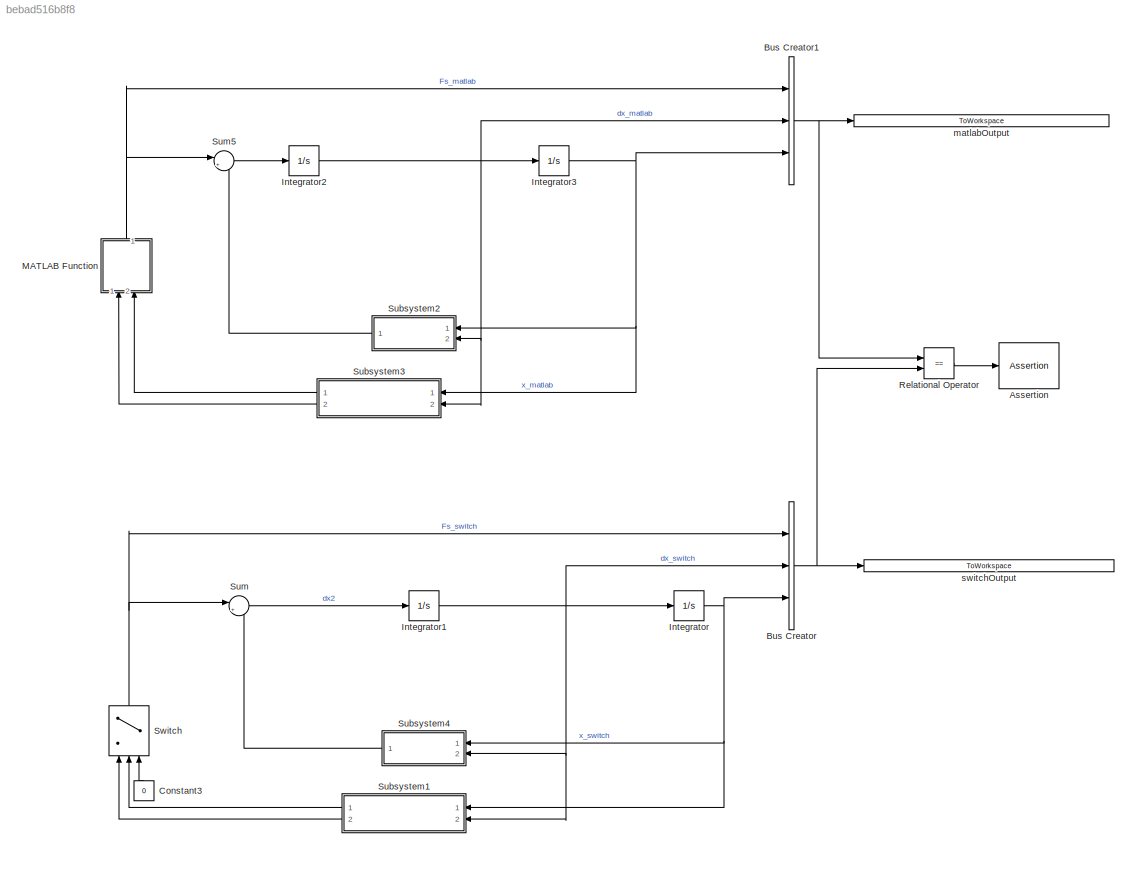
MODEL slx_bebad516b8f8
KIND model
CONFIG StopFcn = save(wSaveFileName,wSwitchOutputName,wMatlabOutputName)
BLOCK [Assertion] Assertion
BLOCK [BusCreator] Bus Creator
  DisplayOption = bar
  Inputs = 3
  Ports = [3, 1]
BLOCK [BusCreator] Bus Creator1
  DisplayOption = bar
  Inputs = 3
  Ports = [3, 1]
BLOCK [Constant] Constant3
  Value = 0
BLOCK [Integrator] Integrator
  InitialCondition = x0
  Ports = [1, 1]
BLOCK [Integrator] Integrator1
  InitialCondition = v0
  Ports = [1, 1]
BLOCK [Integrator] Integrator2
  InitialCondition = v0
  Ports = [1, 1]
BLOCK [Integrator] Integrator3
  InitialCondition = x0
  Ports = [1, 1]
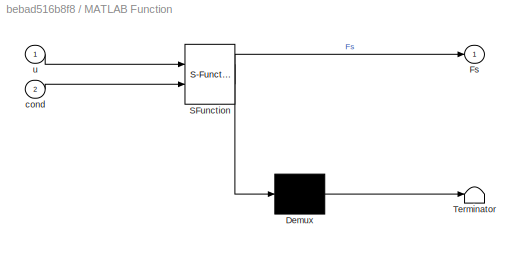
BLOCK [SubSystem] MATLAB Function
  ErrorFcn = Stateflow.Translate.translate
  PermitHierarchicalResolution = ExplicitOnly
  Ports = [2, 1]
  RequestExecContextInheritance = off
  SFBlockType = MATLAB Function
  TreatAsAtomicUnit = on
BLOCK [Demux] MATLAB Function/ Demux 
  Outputs = 1
  Ports = [1, 1]
BLOCK [S-Function] MATLAB Function/ SFunction 
  EnableBusSupport = on
  FunctionName = sf_sfun
  PortCounts = [2 2]
  Ports = [2, 2]
  Tag = Stateflow S-Function masseRessort 2
BLOCK [Terminator] MATLAB Function/ Terminator 
BLOCK [Outport] MATLAB Function/Fs
  IconDisplay = Port number
BLOCK [Inport] MATLAB Function/cond
  IconDisplay = Port number
  Port = 2
BLOCK [Inport] MATLAB Function/u
  IconDisplay = Port number
BLOCK [RelationalOperator] Relational Operator
  InputSameDT = off
  Operator = ==
  OutDataTypeStr = boolean
  Ports = [2, 1]
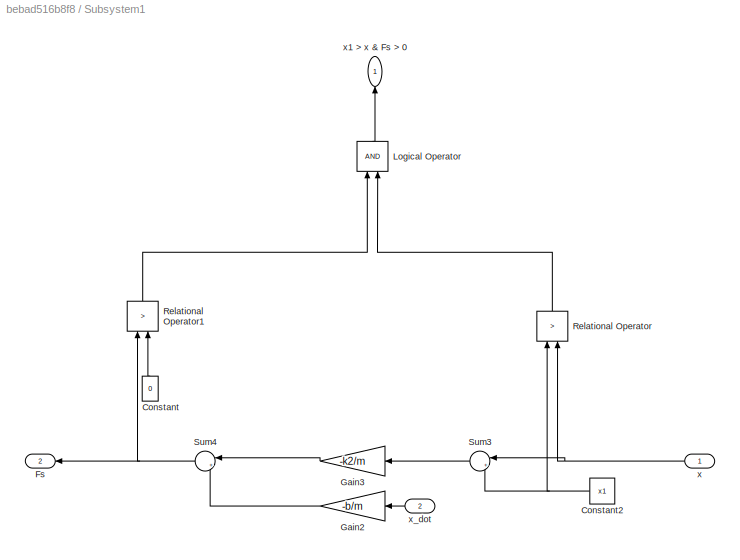
BLOCK [SubSystem] Subsystem1
  Ports = [2, 2]
  RequestExecContextInheritance = off
BLOCK [Constant] Subsystem1/Constant
  Value = 0
BLOCK [Constant] Subsystem1/Constant2
  Value = x1
BLOCK [Outport] Subsystem1/Fs
  IconDisplay = Port number
  Port = 2
BLOCK [Gain] Subsystem1/Gain2
  Gain = -b/m
  OutDataTypeStr = Inherit: Inherit via internal rule
  ParamDataTypeStr = Inherit: Inherit via internal rule
  SaturateOnIntegerOverflow = off
BLOCK [Gain] Subsystem1/Gain3
  Gain = -k2/m
  OutDataTypeStr = Inherit: Inherit via internal rule
  ParamDataTypeStr = Inherit: Inherit via internal rule
  SaturateOnIntegerOverflow = off
BLOCK [Logic] Subsystem1/Logical Operator
  AllPortsSameDT = off
  OutDataTypeStr = boolean
  Ports = [2, 1]
BLOCK [RelationalOperator] Subsystem1/Relational Operator
  InputSameDT = off
  Operator = >
  OutDataTypeStr = boolean
  Ports = [2, 1]
BLOCK [RelationalOperator] Subsystem1/Relational Operator1
  InputSameDT = off
  Operator = >
  OutDataTypeStr = boolean
  Ports = [2, 1]
BLOCK [Sum] Subsystem1/Sum3
  IconShape = round
  InputSameDT = off
  Inputs = |+-
  OutDataTypeStr = Inherit: Inherit via internal rule
  Ports = [2, 1]
  SaturateOnIntegerOverflow = off
BLOCK [Sum] Subsystem1/Sum4
  IconShape = round
  InputSameDT = off
  Inputs = |++
  OutDataTypeStr = Inherit: Inherit via internal rule
  Ports = [2, 1]
  SaturateOnIntegerOverflow = off
BLOCK [Inport] Subsystem1/x
  IconDisplay = Port number
BLOCK [Outport] Subsystem1/x1 > x & Fs > 0
  IconDisplay = Port number
BLOCK [Inport] Subsystem1/x_dot
  IconDisplay = Port number
  Port = 2
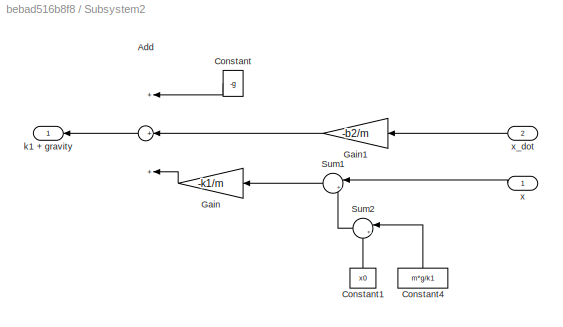
BLOCK [SubSystem] Subsystem2
  Ports = [2, 1]
  RequestExecContextInheritance = off
BLOCK [Sum] Subsystem2/Add
  InputSameDT = off
  Inputs = +++
  OutDataTypeStr = Inherit: Inherit via internal rule
  Ports = [3, 1]
  SaturateOnIntegerOverflow = off
BLOCK [Constant] Subsystem2/Constant
  Value = -g
BLOCK [Constant] Subsystem2/Constant1
  Value = x0
BLOCK [Constant] Subsystem2/Constant4
  Value = m*g/k1
BLOCK [Gain] Subsystem2/Gain
  Gain = -k1/m
  OutDataTypeStr = Inherit: Inherit via internal rule
  ParamDataTypeStr = Inherit: Inherit via internal rule
  SaturateOnIntegerOverflow = off
BLOCK [Gain] Subsystem2/Gain1
  Gain = -b2/m
  OutDataTypeStr = Inherit: Inherit via internal rule
  ParamDataTypeStr = Inherit: Inherit via internal rule
  SaturateOnIntegerOverflow = off
BLOCK [Sum] Subsystem2/Sum1
  IconShape = round
  InputSameDT = off
  Inputs = |+-
  OutDataTypeStr = Inherit: Inherit via internal rule
  Ports = [2, 1]
  SaturateOnIntegerOverflow = off
BLOCK [Sum] Subsystem2/Sum2
  IconShape = round
  InputSameDT = off
  Inputs = |++
  OutDataTypeStr = Inherit: Inherit via internal rule
  Ports = [2, 1]
  SaturateOnIntegerOverflow = off
BLOCK [Outport] Subsystem2/k1 + gravity
  IconDisplay = Port number
BLOCK [Inport] Subsystem2/x
  IconDisplay = Port number
BLOCK [Inport] Subsystem2/x_dot
  IconDisplay = Port number
  Port = 2
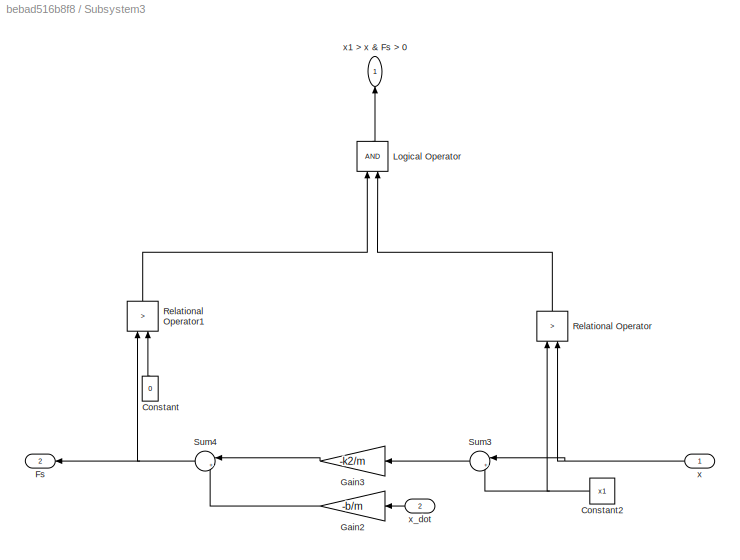
BLOCK [SubSystem] Subsystem3
  Ports = [2, 2]
  RequestExecContextInheritance = off
BLOCK [Constant] Subsystem3/Constant
  Value = 0
BLOCK [Constant] Subsystem3/Constant2
  Value = x1
BLOCK [Outport] Subsystem3/Fs
  IconDisplay = Port number
  Port = 2
BLOCK [Gain] Subsystem3/Gain2
  Gain = -b/m
  OutDataTypeStr = Inherit: Inherit via internal rule
  ParamDataTypeStr = Inherit: Inherit via internal rule
  SaturateOnIntegerOverflow = off
BLOCK [Gain] Subsystem3/Gain3
  Gain = -k2/m
  OutDataTypeStr = Inherit: Inherit via internal rule
  ParamDataTypeStr = Inherit: Inherit via internal rule
  SaturateOnIntegerOverflow = off
BLOCK [Logic] Subsystem3/Logical Operator
  AllPortsSameDT = off
  OutDataTypeStr = boolean
  Ports = [2, 1]
BLOCK [RelationalOperator] Subsystem3/Relational Operator
  InputSameDT = off
  Operator = >
  OutDataTypeStr = boolean
  Ports = [2, 1]
BLOCK [RelationalOperator] Subsystem3/Relational Operator1
  InputSameDT = off
  Operator = >
  OutDataTypeStr = boolean
  Ports = [2, 1]
BLOCK [Sum] Subsystem3/Sum3
  IconShape = round
  InputSameDT = off
  Inputs = |+-
  OutDataTypeStr = Inherit: Inherit via internal rule
  Ports = [2, 1]
  SaturateOnIntegerOverflow = off
BLOCK [Sum] Subsystem3/Sum4
  IconShape = round
  InputSameDT = off
  Inputs = |++
  OutDataTypeStr = Inherit: Inherit via internal rule
  Ports = [2, 1]
  SaturateOnIntegerOverflow = off
BLOCK [Inport] Subsystem3/x
  IconDisplay = Port number
BLOCK [Outport] Subsystem3/x1 > x & Fs > 0
  IconDisplay = Port number
BLOCK [Inport] Subsystem3/x_dot
  IconDisplay = Port number
  Port = 2
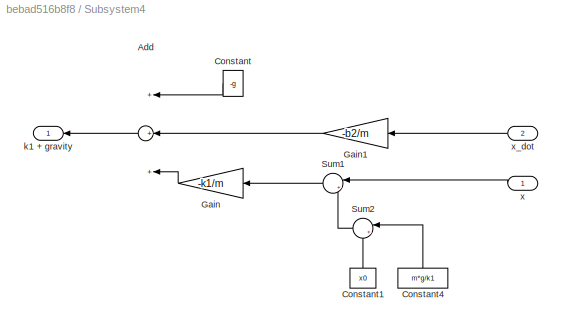
BLOCK [SubSystem] Subsystem4
  Ports = [2, 1]
  RequestExecContextInheritance = off
BLOCK [Sum] Subsystem4/Add
  InputSameDT = off
  Inputs = +++
  OutDataTypeStr = Inherit: Inherit via internal rule
  Ports = [3, 1]
  SaturateOnIntegerOverflow = off
BLOCK [Constant] Subsystem4/Constant
  Value = -g
BLOCK [Constant] Subsystem4/Constant1
  Value = x0
BLOCK [Constant] Subsystem4/Constant4
  Value = m*g/k1
BLOCK [Gain] Subsystem4/Gain
  Gain = -k1/m
  OutDataTypeStr = Inherit: Inherit via internal rule
  ParamDataTypeStr = Inherit: Inherit via internal rule
  SaturateOnIntegerOverflow = off
BLOCK [Gain] Subsystem4/Gain1
  Gain = -b2/m
  OutDataTypeStr = Inherit: Inherit via internal rule
  ParamDataTypeStr = Inherit: Inherit via internal rule
  SaturateOnIntegerOverflow = off
BLOCK [Sum] Subsystem4/Sum1
  IconShape = round
  InputSameDT = off
  Inputs = |+-
  OutDataTypeStr = Inherit: Inherit via internal rule
  Ports = [2, 1]
  SaturateOnIntegerOverflow = off
BLOCK [Sum] Subsystem4/Sum2
  IconShape = round
  InputSameDT = off
  Inputs = |++
  OutDataTypeStr = Inherit: Inherit via internal rule
  Ports = [2, 1]
  SaturateOnIntegerOverflow = off
BLOCK [Outport] Subsystem4/k1 + gravity
  IconDisplay = Port number
BLOCK [Inport] Subsystem4/x
  IconDisplay = Port number
BLOCK [Inport] Subsystem4/x_dot
  IconDisplay = Port number
  Port = 2
BLOCK [Sum] Sum
  IconShape = round
  InputSameDT = off
  Inputs = |++
  OutDataTypeStr = Inherit: Inherit via internal rule
  Ports = [2, 1]
  SaturateOnIntegerOverflow = off
BLOCK [Sum] Sum5
  IconShape = round
  InputSameDT = off
  Inputs = |++
  OutDataTypeStr = Inherit: Inherit via internal rule
  Ports = [2, 1]
  SaturateOnIntegerOverflow = off
BLOCK [Switch] Switch
  Criteria = u2 > Threshold
  InputSameDT = off
  SaturateOnIntegerOverflow = off
BLOCK [ToWorkspace] matlabOutput
  FixptAsFi = on
  MaxDataPoints = inf
  Ports = [1]
  SampleTime = -1
  Save2DSignal = 3-D array (concatenate along third dimension)
  SaveFormat = Timeseries
  VariableName = masseRessort_Matlalb_masseRessort_k2_1_b_29
BLOCK [ToWorkspace] switchOutput
  FixptAsFi = on
  MaxDataPoints = inf
  Ports = [1]
  SampleTime = -1
  Save2DSignal = 3-D array (concatenate along third dimension)
  SaveFormat = Timeseries
  VariableName = masseRessort_Switch_masseRessort_k2_1_b_29
NET Bus Creator1:1 -> Relational Operator:1, matlabOutput:1
NET Bus Creator:1 -> Relational Operator:2, switchOutput:1
LINE Constant3:1 -> Switch:3
NET Integrator1:1 -> Bus Creator:2, Integrator:1, Subsystem1:2, Subsystem4:2
NET Integrator2:1 -> Bus Creator1:2, Integrator3:1, Subsystem2:2, Subsystem3:2
NET Integrator3:1 -> Bus Creator1:3, Subsystem2:1, Subsystem3:1
NET Integrator:1 -> Bus Creator:3, Subsystem1:1, Subsystem4:1
NET MATLAB Function:1 -> Bus Creator1:1, Sum5:1
LINE Relational Operator:1 -> Assertion:1
NET Subsystem1/Constant2:1 -> Subsystem1/Relational Operator:1, Subsystem1/Sum3:2
LINE Subsystem1/Constant:1 -> Subsystem1/Relational Operator1:2
LINE Subsystem1/Gain2:1 -> Subsystem1/Sum4:2
LINE Subsystem1/Gain3:1 -> Subsystem1/Sum4:1
LINE Subsystem1/Logical Operator:1 -> Subsystem1/x1 > x & Fs > 0:1
LINE Subsystem1/Relational Operator1:1 -> Subsystem1/Logical Operator:1
LINE Subsystem1/Relational Operator:1 -> Subsystem1/Logical Operator:2
LINE Subsystem1/Sum3:1 -> Subsystem1/Gain3:1
NET Subsystem1/Sum4:1 -> Subsystem1/Fs:1, Subsystem1/Relational Operator1:1
NET Subsystem1/x:1 -> Subsystem1/Relational Operator:2, Subsystem1/Sum3:1
LINE Subsystem1/x_dot:1 -> Subsystem1/Gain2:1
LINE Subsystem1:1 -> Switch:2
LINE Subsystem1:2 -> Switch:1
LINE Subsystem2/Add:1 -> Subsystem2/k1 + gravity:1
LINE Subsystem2/Constant1:1 -> Subsystem2/Sum2:2
LINE Subsystem2/Constant4:1 -> Subsystem2/Sum2:1
LINE Subsystem2/Constant:1 -> Subsystem2/Add:1
LINE Subsystem2/Gain1:1 -> Subsystem2/Add:2
LINE Subsystem2/Gain:1 -> Subsystem2/Add:3
LINE Subsystem2/Sum1:1 -> Subsystem2/Gain:1
LINE Subsystem2/Sum2:1 -> Subsystem2/Sum1:2
LINE Subsystem2/x:1 -> Subsystem2/Sum1:1
LINE Subsystem2/x_dot:1 -> Subsystem2/Gain1:1
LINE Subsystem2:1 -> Sum5:2
NET Subsystem3/Constant2:1 -> Subsystem3/Relational Operator:1, Subsystem3/Sum3:2
LINE Subsystem3/Constant:1 -> Subsystem3/Relational Operator1:2
LINE Subsystem3/Gain2:1 -> Subsystem3/Sum4:2
LINE Subsystem3/Gain3:1 -> Subsystem3/Sum4:1
LINE Subsystem3/Logical Operator:1 -> Subsystem3/x1 > x & Fs > 0:1
LINE Subsystem3/Relational Operator1:1 -> Subsystem3/Logical Operator:1
LINE Subsystem3/Relational Operator:1 -> Subsystem3/Logical Operator:2
LINE Subsystem3/Sum3:1 -> Subsystem3/Gain3:1
NET Subsystem3/Sum4:1 -> Subsystem3/Fs:1, Subsystem3/Relational Operator1:1
NET Subsystem3/x:1 -> Subsystem3/Relational Operator:2, Subsystem3/Sum3:1
LINE Subsystem3/x_dot:1 -> Subsystem3/Gain2:1
LINE Subsystem3:1 -> MATLAB Function:2
LINE Subsystem3:2 -> MATLAB Function:1
LINE Subsystem4/Add:1 -> Subsystem4/k1 + gravity:1
LINE Subsystem4/Constant1:1 -> Subsystem4/Sum2:2
LINE Subsystem4/Constant4:1 -> Subsystem4/Sum2:1
LINE Subsystem4/Constant:1 -> Subsystem4/Add:1
LINE Subsystem4/Gain1:1 -> Subsystem4/Add:2
LINE Subsystem4/Gain:1 -> Subsystem4/Add:3
LINE Subsystem4/Sum1:1 -> Subsystem4/Gain:1
LINE Subsystem4/Sum2:1 -> Subsystem4/Sum1:2
LINE Subsystem4/x:1 -> Subsystem4/Sum1:1
LINE Subsystem4/x_dot:1 -> Subsystem4/Gain1:1
LINE Subsystem4:1 -> Sum:2
LINE Sum5:1 -> Integrator2:1
LINE Sum:1 -> Integrator1:1
NET Switch:1 -> Bus Creator:1, Sum:1
note: NET lines group one-source signal fan-out (src -> all destinations, sorted); 1:1 wires keep LINE
CHART MATLAB Function states=1 transitions=1
  STATE_LABEL 'eML_blk_kernel()'
  STATE_LABEL 'SCRIPT:\nfunction Fs = fcn(u,cond)\n%#codegen\n\nif (cond > 0)\n    Fs = u;\nelse\n    Fs = 0;\nend\n\n    '
